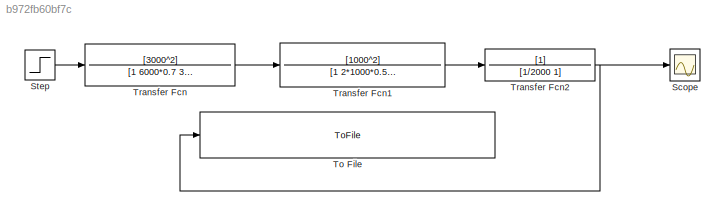
MODEL slx_b972fb60bf7c
KIND model
CONFIG AbsTol = auto
CONFIG EnableMultiTasking = off
CONFIG FixedStep = auto
CONFIG MaxStep = auto
CONFIG MinStep = auto
CONFIG RelTol = 0.1e-3
CONFIG SampleTimeConstraint = Unconstrained
CONFIG Solver = ode23tb
CONFIG SolverName = ode23tb
CONFIG StartTime = 0.0
CONFIG StopTime = 20e-3
BLOCK [Scope] Scope
  NumInputPorts = 1
  Ports = [1]
  ScopeSpecificationString = Simulink.scopes.TimeScopeBlockCfg('CurrentConfiguration', extmgr.ConfigurationSet(extmgr.Configuration('Core','General UI',true),extmgr.Configuration('Core','Source UI',true),extmgr.Configuration('Sources','WiredSimulink',true),extmgr.Configuration('Visuals','Time Domain',true,'SerializedDisplays',{struct('MinYLimReal','-0.2854','MaxYLimReal','2.56862','YLabelReal','','MinYLimMag','0.00000','MaxYL...<+1358ch>
BLOCK [Step] Step
  After = 2
  SampleTime = 0
  Time = 0
BLOCK [ToFile] To File
  Filename = SimulacionesSimulink/QuintoOrden.mat
  MatrixName = datosmatlab
  Ports = [1]
BLOCK [TransferFcn] Transfer Fcn
  Denominator = [1 6000*0.7 3000^2]
  Numerator = [3000^2]
BLOCK [TransferFcn] Transfer Fcn1
  Denominator = [1 2*1000*0.5 1000^2]
  Numerator = [1000^2]
BLOCK [TransferFcn] Transfer Fcn2
  Denominator = [1/2000 1]
LINE Step:1 -> Transfer Fcn:1
LINE Transfer Fcn1:1 -> Transfer Fcn2:1
NET Transfer Fcn2:1 -> Scope:1, To File:1
LINE Transfer Fcn:1 -> Transfer Fcn1:1
note: NET lines group one-source signal fan-out (src -> all destinations, sorted); 1:1 wires keep LINE
